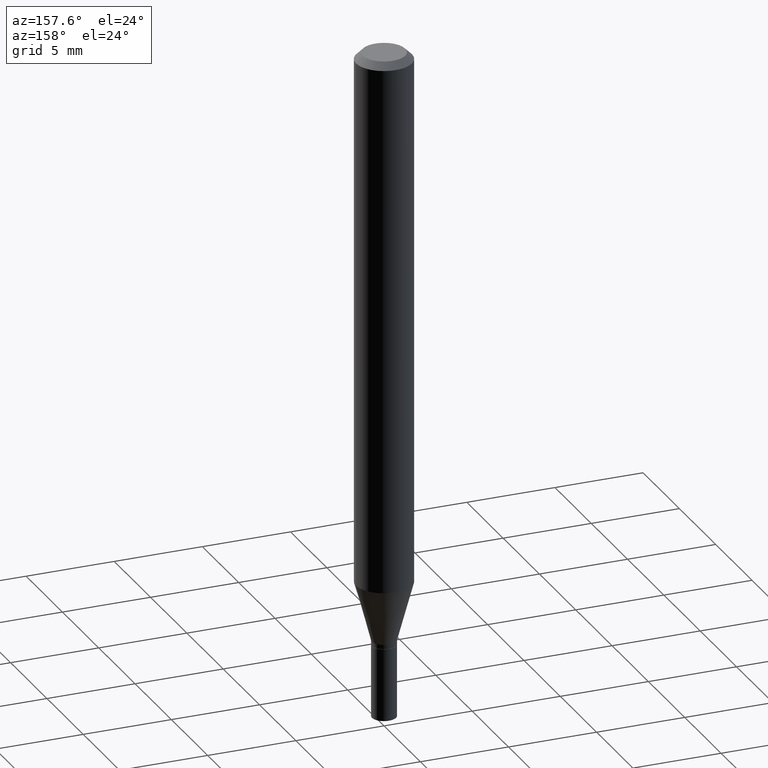
[diagram: clean part render]
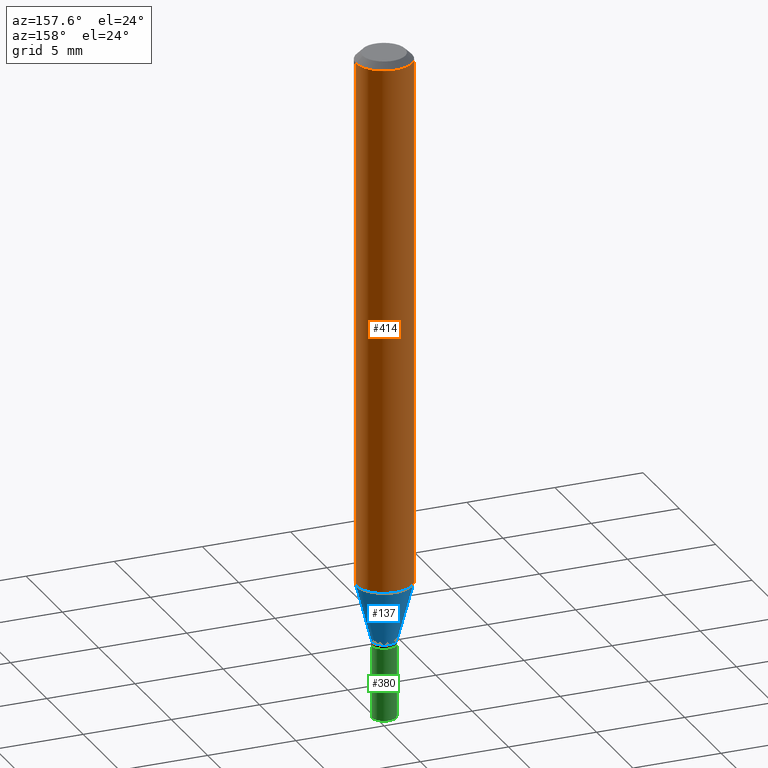
[diagram: same view with three faces highlighted in distinct colors, each labeled with its STEP entity id]
A machine part, auxiliary view with three faces highlighted in distinct colors.
Their STEP definitions:

[orange] entity #414 — the highlighted cylindrical surface (edge-blend (fillet) strip) has radius 1.5875 mm, axis along (-0, 0, 1).
#7 = FACE_OUTER_BOUND ( 'NONE', #346, .T. ) ;
#12 = VECTOR ( 'NONE', #371, 39.37007874015748143 ) ;
#27 = CARTESIAN_POINT ( 'NONE',  ( 3.668203209277705088E-31, -5.237222008264718399E-17, -0.01499999999999999944 ) ) ;
#32 = EDGE_CURVE ( 'NONE', #457, #177, #281, .T. ) ;
#48 = DIRECTION ( 'NONE',  ( 1.000000000000000000, -6.982962677686262766E-15, 0.000000000000000000 ) ) ;
#49 = ORIENTED_EDGE ( 'NONE', *, *, #328, .T. ) ;
#50 = LINE ( 'NONE', #298, #85 ) ;
#71 = DIRECTION ( 'NONE',  ( 1.000000000000000000, -6.982962677686266711E-15, 4.876176775795935793E-29 ) ) ;
#85 = VECTOR ( 'NONE', #128, 39.37007874015748143 ) ;
#88 = ORIENTED_EDGE ( 'NONE', *, *, #284, .T. ) ;
#98 = DIRECTION ( 'NONE',  ( 1.000000000000000000, -6.982962677686266711E-15, 0.000000000000000000 ) ) ;
#106 = ORIENTED_EDGE ( 'NONE', *, *, #235, .F. ) ;
#122 = AXIS2_PLACEMENT_3D ( 'NONE', #149, #428, #71 ) ;
#128 = DIRECTION ( 'NONE',  ( -2.445468806185136877E-29, 3.491481338843145188E-15, 1.000000000000000000 ) ) ;
#135 = CARTESIAN_POINT ( 'NONE',  ( -0.06250000000000000000, -1.669151162116327740E-15, -0.01499999999999999944 ) ) ;
#144 = CARTESIAN_POINT ( 'NONE',  ( 0.06250000000000000000, -4.888073874380388472E-16, -0.01499999999999999944 ) ) ;
#149 = CARTESIAN_POINT ( 'NONE',  ( 0.000000000000000000, 0.000000000000000000, 0.000000000000000000 ) ) ;
#151 = CARTESIAN_POINT ( 'NONE',  ( 2.923587783542086622E-29, -4.174108523850133238E-15, -1.195512196331304677 ) ) ;
#161 = VERTEX_POINT ( 'NONE', #270 ) ;
#169 = ORIENTED_EDGE ( 'NONE', *, *, #32, .F. ) ;
#177 = VERTEX_POINT ( 'NONE', #135 ) ;
#197 = CIRCLE ( 'NONE', #256, 0.06250000000000000000 ) ;
#199 = LINE ( 'NONE', #231, #12 ) ;
#212 = CYLINDRICAL_SURFACE ( 'NONE', #122, 0.06250000000000000000 ) ;
#231 = CARTESIAN_POINT ( 'NONE',  ( 0.06250000000000000000, -4.364351673553916694E-16, 3.047610484872459871E-30 ) ) ;
#235 = EDGE_CURVE ( 'NONE', #161, #457, #199, .T. ) ;
#246 = VERTEX_POINT ( 'NONE', #463 ) ;
#256 = AXIS2_PLACEMENT_3D ( 'NONE', #151, #432, #48 ) ;
#270 = CARTESIAN_POINT ( 'NONE',  ( 0.06250000000000000000, -4.610543691205524908E-15, -1.195512196331304677 ) ) ;
#281 = CIRCLE ( 'NONE', #459, 0.06250000000000000000 ) ;
#284 = EDGE_CURVE ( 'NONE', #246, #177, #50, .T. ) ;
#298 = CARTESIAN_POINT ( 'NONE',  ( -0.06250000000000000000, 4.440892098500626162E-16, -3.074334431409316114E-30 ) ) ;
#328 = EDGE_CURVE ( 'NONE', #161, #246, #197, .T. ) ;
#346 = EDGE_LOOP ( 'NONE', ( #49, #88, #169, #106 ) ) ;
#371 = DIRECTION ( 'NONE',  ( -2.445468806185136877E-29, 3.491481338843145188E-15, 1.000000000000000000 ) ) ;
#391 = DIRECTION ( 'NONE',  ( -2.445468806185136597E-29, 3.491481338843145583E-15, 1.000000000000000000 ) ) ;
#414 = ADVANCED_FACE ( 'NONE', ( #7 ), #212, .T. ) ;
#428 = DIRECTION ( 'NONE',  ( -2.445468806185136597E-29, 3.491481338843145583E-15, 1.000000000000000000 ) ) ;
#432 = DIRECTION ( 'NONE',  ( -2.445468806185136597E-29, 3.491481338843145583E-15, 1.000000000000000000 ) ) ;
#457 = VERTEX_POINT ( 'NONE', #144 ) ;
#459 = AXIS2_PLACEMENT_3D ( 'NONE', #27, #391, #98 ) ;
#463 = CARTESIAN_POINT ( 'NONE',  ( -0.06250000000000000000, -3.730019314000071411E-15, -1.195512196331304677 ) ) ;

[blue] entity #137 — the highlighted conical surface has half-angle 15 deg.
#26 = LINE ( 'NONE', #110, #424 ) ;
#40 = ORIENTED_EDGE ( 'NONE', *, *, #139, .T. ) ;
#48 = DIRECTION ( 'NONE',  ( 1.000000000000000000, -6.982962677686262766E-15, 0.000000000000000000 ) ) ;
#59 = CARTESIAN_POINT ( 'NONE',  ( -0.02699999999999992684, -4.444840679328471640E-15, -1.328000000000000069 ) ) ;
#82 = CARTESIAN_POINT ( 'NONE',  ( -0.02699999999999992684, -4.087429996664271131E-15, -1.328000000000000069 ) ) ;
#107 = DIRECTION ( 'NONE',  ( -2.445468806185136597E-29, 3.491481338843145583E-15, 1.000000000000000000 ) ) ;
#110 = CARTESIAN_POINT ( 'NONE',  ( 0.02699999999999992684, -4.825227210281226768E-15, -1.328000000000000069 ) ) ;
#115 = EDGE_CURVE ( 'NONE', #389, #161, #26, .T. ) ;
#130 = DIRECTION ( 'NONE',  ( 1.000000000000000000, -6.982962677686279332E-15, 0.000000000000000000 ) ) ;
#133 = AXIS2_PLACEMENT_3D ( 'NONE', #225, #444, #130 ) ;
#137 = ADVANCED_FACE ( 'NONE', ( #292 ), #320, .T. ) ;
#139 = EDGE_CURVE ( 'NONE', #386, #246, #335, .T. ) ;
#151 = CARTESIAN_POINT ( 'NONE',  ( 2.923587783542086622E-29, -4.174108523850133238E-15, -1.195512196331304677 ) ) ;
#161 = VERTEX_POINT ( 'NONE', #270 ) ;
#166 = VECTOR ( 'NONE', #339, 39.37007874015748854 ) ;
#178 = DIRECTION ( 'NONE',  ( 1.000000000000000000, -6.982962677686279332E-15, 0.000000000000000000 ) ) ;
#197 = CIRCLE ( 'NONE', #256, 0.06250000000000000000 ) ;
#204 = AXIS2_PLACEMENT_3D ( 'NONE', #252, #107, #178 ) ;
#211 = DIRECTION ( 'NONE',  ( 0.2588190451025207395, 1.565188264969626109E-15, 0.9659258262890682012 ) ) ;
#221 = ORIENTED_EDGE ( 'NONE', *, *, #115, .F. ) ;
#225 = CARTESIAN_POINT ( 'NONE',  ( 3.247582574613861342E-29, -4.636687217983698072E-15, -1.328000000000000069 ) ) ;
#232 = ORIENTED_EDGE ( 'NONE', *, *, #328, .F. ) ;
#246 = VERTEX_POINT ( 'NONE', #463 ) ;
#252 = CARTESIAN_POINT ( 'NONE',  ( 3.247582574613861342E-29, -4.636687217983698072E-15, -1.328000000000000069 ) ) ;
#256 = AXIS2_PLACEMENT_3D ( 'NONE', #151, #432, #48 ) ;
#270 = CARTESIAN_POINT ( 'NONE',  ( 0.06250000000000000000, -4.610543691205524908E-15, -1.195512196331304677 ) ) ;
#292 = FACE_OUTER_BOUND ( 'NONE', #443, .T. ) ;
#320 = CONICAL_SURFACE ( 'NONE', #133, 0.02699999999999992684, 0.2617993877991494633 ) ;
#328 = EDGE_CURVE ( 'NONE', #161, #246, #197, .T. ) ;
#335 = LINE ( 'NONE', #59, #166 ) ;
#339 = DIRECTION ( 'NONE',  ( -0.2588190451025207395, 5.211531920934546309E-15, 0.9659258262890682012 ) ) ;
#350 = CARTESIAN_POINT ( 'NONE',  ( 0.02699999999999992684, -4.825227210281226768E-15, -1.328000000000000069 ) ) ;
#357 = ORIENTED_EDGE ( 'NONE', *, *, #398, .T. ) ;
#386 = VERTEX_POINT ( 'NONE', #82 ) ;
#389 = VERTEX_POINT ( 'NONE', #350 ) ;
#396 = CIRCLE ( 'NONE', #204, 0.02699999999999992684 ) ;
#398 = EDGE_CURVE ( 'NONE', #389, #386, #396, .T. ) ;
#424 = VECTOR ( 'NONE', #211, 39.37007874015748854 ) ;
#432 = DIRECTION ( 'NONE',  ( -2.445468806185136597E-29, 3.491481338843145583E-15, 1.000000000000000000 ) ) ;
#443 = EDGE_LOOP ( 'NONE', ( #357, #40, #232, #221 ) ) ;
#444 = DIRECTION ( 'NONE',  ( -2.445468806185136597E-29, 3.491481338843145583E-15, 1.000000000000000000 ) ) ;
#463 = CARTESIAN_POINT ( 'NONE',  ( -0.06250000000000000000, -3.730019314000071411E-15, -1.195512196331304677 ) ) ;

[green] entity #380 — the highlighted cylindrical surface (edge-blend (fillet) strip) has radius 0.6858 mm, axis along (-0, 0, 1).
#4 = AXIS2_PLACEMENT_3D ( 'NONE', #321, #285, #116 ) ;
#6 = CARTESIAN_POINT ( 'NONE',  ( 0.02699999999999999969, -5.425762000562247662E-15, -1.500000000000000222 ) ) ;
#8 = EDGE_CURVE ( 'NONE', #118, #324, #397, .T. ) ;
#15 = VERTEX_POINT ( 'NONE', #6 ) ;
#37 = ORIENTED_EDGE ( 'NONE', *, *, #184, .F. ) ;
#65 = AXIS2_PLACEMENT_3D ( 'NONE', #315, #423, #287 ) ;
#72 = VECTOR ( 'NONE', #400, 39.37007874015748143 ) ;
#80 = CARTESIAN_POINT ( 'NONE',  ( -0.02699999999999999969, -4.762565481163196334E-15, -1.338000000000000078 ) ) ;
#116 = DIRECTION ( 'NONE',  ( 1.000000000000000000, -6.982962677686261189E-15, 0.000000000000000000 ) ) ;
#117 = DIRECTION ( 'NONE',  ( 1.000000000000000000, -6.982962677686261189E-15, 0.000000000000000000 ) ) ;
#118 = VERTEX_POINT ( 'NONE', #170 ) ;
#170 = CARTESIAN_POINT ( 'NONE',  ( 0.02699999999999999969, -4.860142023669657629E-15, -1.338000000000000078 ) ) ;
#174 = AXIS2_PLACEMENT_3D ( 'NONE', #390, #280, #117 ) ;
#184 = EDGE_CURVE ( 'NONE', #15, #118, #272, .T. ) ;
#185 = ORIENTED_EDGE ( 'NONE', *, *, #412, .T. ) ;
#247 = LINE ( 'NONE', #383, #338 ) ;
#255 = CYLINDRICAL_SURFACE ( 'NONE', #65, 0.02699999999999999969 ) ;
#257 = ORIENTED_EDGE ( 'NONE', *, *, #8, .F. ) ;
#272 = LINE ( 'NONE', #416, #72 ) ;
#280 = DIRECTION ( 'NONE',  ( -2.445468806185136597E-29, 3.491481338843145583E-15, 1.000000000000000000 ) ) ;
#285 = DIRECTION ( 'NONE',  ( -2.445468806185136597E-29, 3.491481338843145583E-15, 1.000000000000000000 ) ) ;
#287 = DIRECTION ( 'NONE',  ( 1.000000000000000000, -6.982962677686266711E-15, 4.876176775795935232E-29 ) ) ;
#305 = CARTESIAN_POINT ( 'NONE',  ( -0.02699999999999999969, -4.762565481163196334E-15, -1.500000000000000222 ) ) ;
#312 = CIRCLE ( 'NONE', #174, 0.02699999999999999969 ) ;
#313 = VERTEX_POINT ( 'NONE', #305 ) ;
#315 = CARTESIAN_POINT ( 'NONE',  ( 0.000000000000000000, 0.000000000000000000, 0.000000000000000000 ) ) ;
#317 = EDGE_CURVE ( 'NONE', #15, #313, #312, .T. ) ;
#319 = FACE_OUTER_BOUND ( 'NONE', #353, .T. ) ;
#321 = CARTESIAN_POINT ( 'NONE',  ( 3.272037262675712888E-29, -4.671602031372128143E-15, -1.338000000000000078 ) ) ;
#324 = VERTEX_POINT ( 'NONE', #80 ) ;
#325 = DIRECTION ( 'NONE',  ( -2.445468806185136877E-29, 3.491481338843145188E-15, 1.000000000000000000 ) ) ;
#338 = VECTOR ( 'NONE', #325, 39.37007874015748143 ) ;
#353 = EDGE_LOOP ( 'NONE', ( #464, #185, #257, #37 ) ) ;
#380 = ADVANCED_FACE ( 'NONE', ( #319 ), #255, .T. ) ;
#383 = CARTESIAN_POINT ( 'NONE',  ( -0.02699999999999999969, 1.918465386552270480E-16, -1.328112474368824466E-30 ) ) ;
#390 = CARTESIAN_POINT ( 'NONE',  ( 3.668203209277704895E-29, -5.237222008264718177E-15, -1.500000000000000222 ) ) ;
#397 = CIRCLE ( 'NONE', #4, 0.02699999999999999969 ) ;
#400 = DIRECTION ( 'NONE',  ( -2.445468806185136877E-29, 3.491481338843145188E-15, 1.000000000000000000 ) ) ;
#412 = EDGE_CURVE ( 'NONE', #313, #324, #247, .T. ) ;
#416 = CARTESIAN_POINT ( 'NONE',  ( 0.02699999999999999969, -1.885399922975291894E-16, 1.316567729464902510E-30 ) ) ;
#423 = DIRECTION ( 'NONE',  ( -2.445468806185136597E-29, 3.491481338843145583E-15, 1.000000000000000000 ) ) ;
#464 = ORIENTED_EDGE ( 'NONE', *, *, #317, .T. ) ;